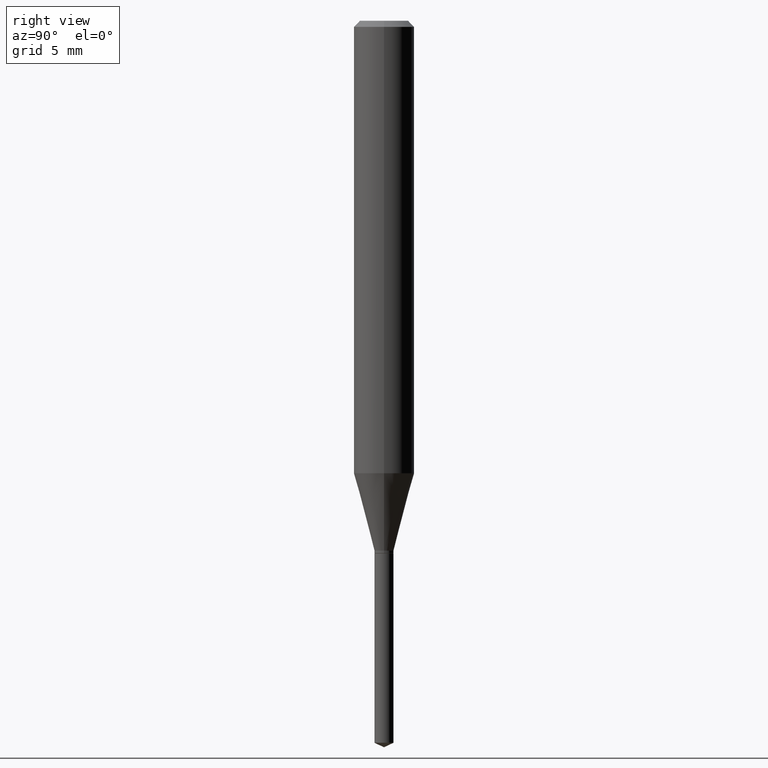
[diagram: clean part render]
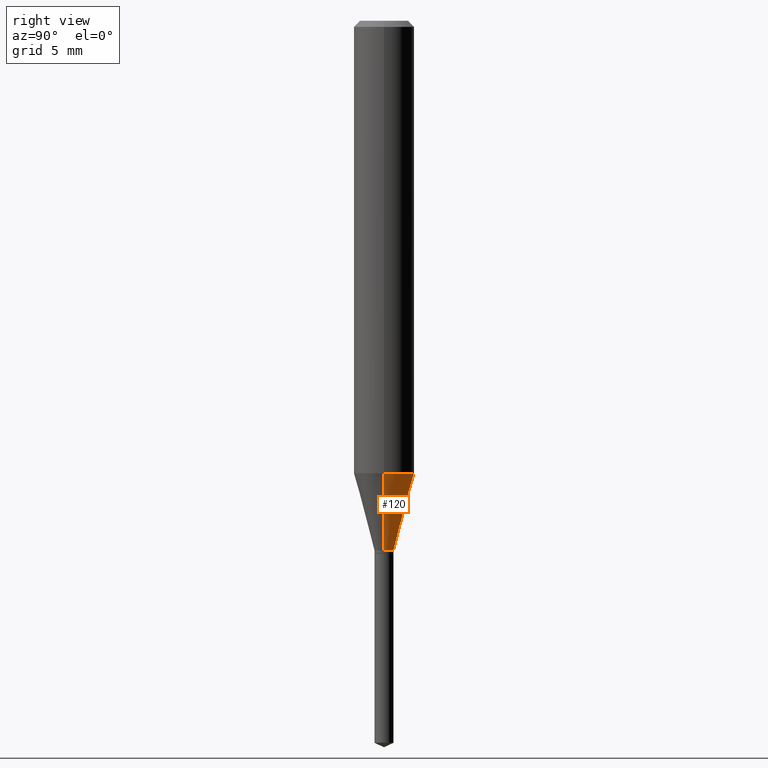
[diagram: same view with one face highlighted and labeled with its STEP entity id]
A machine part, right view. The second image highlights one B-rep face of the part: STEP entity #120.
In plain terms, the highlighted conical surface has half-angle 15 deg.
Its self-contained STEP definition (entity closure, byte-faithful):
#5 = AXIS2_PLACEMENT_3D ( 'NONE', #435, #340, #79 ) ;
#18 = AXIS2_PLACEMENT_3D ( 'NONE', #413, #408, #380 ) ;
#20 = EDGE_CURVE ( 'NONE', #64, #198, #291, .T. ) ;
#38 = VECTOR ( 'NONE', #440, 39.37007874015748854 ) ;
#57 = ORIENTED_EDGE ( 'NONE', *, *, #283, .T. ) ;
#64 = VERTEX_POINT ( 'NONE', #75 ) ;
#75 = CARTESIAN_POINT ( 'NONE',  ( 0.01969999999999999876, -3.957594097578706363E-15, -1.094100000000000295 ) ) ;
#79 = DIRECTION ( 'NONE',  ( 1.000000000000000000, -6.982962677686278543E-15, 0.000000000000000000 ) ) ;
#80 = CIRCLE ( 'NONE', #5, 0.01969999999999999876 ) ;
#99 = CARTESIAN_POINT ( 'NONE',  ( 0.06250000000000011102, -3.698764390073353980E-15, -0.9343682254360521355 ) ) ;
#120 = ADVANCED_FACE ( 'NONE', ( #448 ), #410, .T. ) ;
#122 = EDGE_CURVE ( 'NONE', #64, #256, #80, .T. ) ;
#123 = ORIENTED_EDGE ( 'NONE', *, *, #20, .F. ) ;
#141 = DIRECTION ( 'NONE',  ( -2.445468806185136597E-29, 3.491481338843145583E-15, 1.000000000000000000 ) ) ;
#157 = VERTEX_POINT ( 'NONE', #473 ) ;
#169 = CARTESIAN_POINT ( 'NONE',  ( 2.284968348794427209E-29, -3.262329222717961522E-15, -0.9343682254360521355 ) ) ;
#174 = CARTESIAN_POINT ( 'NONE',  ( 0.01969999999999999876, -3.957594097578706363E-15, -1.094100000000000295 ) ) ;
#198 = VERTEX_POINT ( 'NONE', #99 ) ;
#209 = CARTESIAN_POINT ( 'NONE',  ( -0.01969999999999999876, -3.680052813883547051E-15, -1.094100000000000295 ) ) ;
#217 = LINE ( 'NONE', #209, #454 ) ;
#256 = VERTEX_POINT ( 'NONE', #475 ) ;
#266 = EDGE_CURVE ( 'NONE', #198, #157, #333, .T. ) ;
#275 = ORIENTED_EDGE ( 'NONE', *, *, #122, .T. ) ;
#282 = DIRECTION ( 'NONE',  ( 1.000000000000000000, -6.982962677686265922E-15, 0.000000000000000000 ) ) ;
#283 = EDGE_CURVE ( 'NONE', #256, #157, #217, .T. ) ;
#291 = LINE ( 'NONE', #174, #38 ) ;
#333 = CIRCLE ( 'NONE', #477, 0.06250000000000011102 ) ;
#340 = DIRECTION ( 'NONE',  ( -2.445468806185136597E-29, 3.491481338843145583E-15, 1.000000000000000000 ) ) ;
#355 = ORIENTED_EDGE ( 'NONE', *, *, #266, .F. ) ;
#380 = DIRECTION ( 'NONE',  ( 1.000000000000000000, -6.982962677686278543E-15, 0.000000000000000000 ) ) ;
#408 = DIRECTION ( 'NONE',  ( -2.445468806185136597E-29, 3.491481338843145583E-15, 1.000000000000000000 ) ) ;
#410 = CONICAL_SURFACE ( 'NONE', #18, 0.01969999999999999876, 0.2617993877991499629 ) ;
#413 = CARTESIAN_POINT ( 'NONE',  ( 2.675587420847158338E-29, -3.820029732828286359E-15, -1.094100000000000295 ) ) ;
#434 = DIRECTION ( 'NONE',  ( -0.2588190451025212391, 5.211531920934549464E-15, 0.9659258262890679791 ) ) ;
#435 = CARTESIAN_POINT ( 'NONE',  ( 2.675587420847158338E-29, -3.820029732828286359E-15, -1.094100000000000295 ) ) ;
#440 = DIRECTION ( 'NONE',  ( 0.2588190451025212391, 1.565188264969622362E-15, 0.9659258262890679791 ) ) ;
#448 = FACE_OUTER_BOUND ( 'NONE', #483, .T. ) ;
#454 = VECTOR ( 'NONE', #434, 39.37007874015748854 ) ;
#473 = CARTESIAN_POINT ( 'NONE',  ( -0.06250000000000011102, -2.818240012867898117E-15, -0.9343682254360521355 ) ) ;
#475 = CARTESIAN_POINT ( 'NONE',  ( -0.01969999999999999876, -3.689479813498422381E-15, -1.094100000000000295 ) ) ;
#477 = AXIS2_PLACEMENT_3D ( 'NONE', #169, #141, #282 ) ;
#483 = EDGE_LOOP ( 'NONE', ( #275, #57, #355, #123 ) ) ;